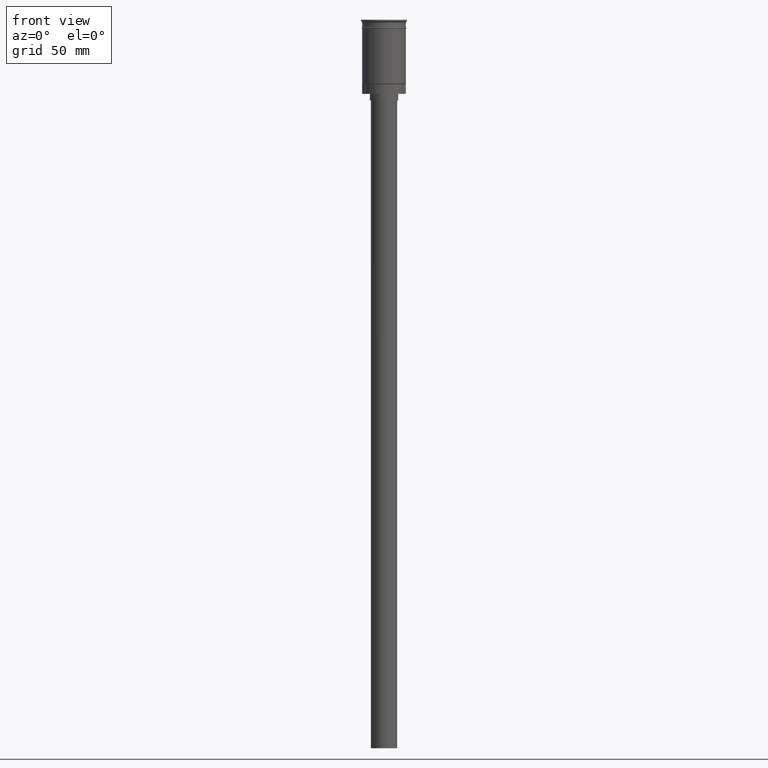
[diagram: clean part render]
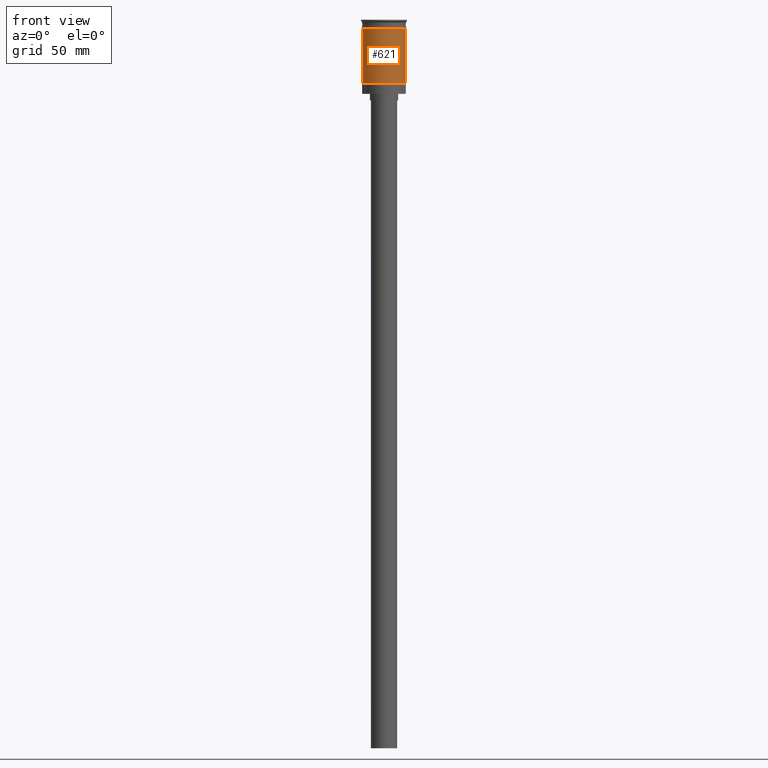
[diagram: same view with one face highlighted and labeled with its STEP entity id]
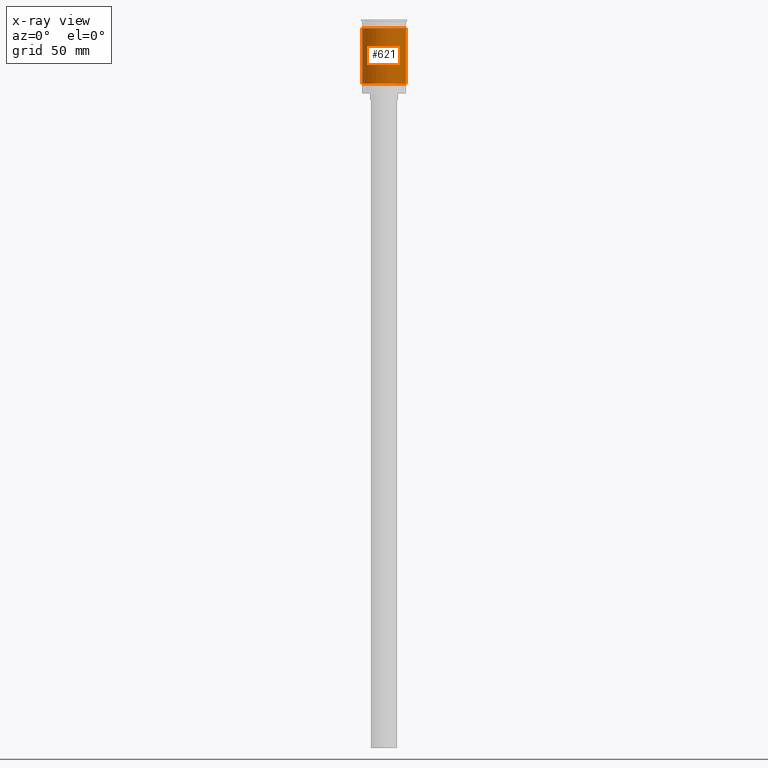
[diagram: x-ray of the same camera — body ghosted, the highlighted face saturated]
A machine part, front view. The second image highlights one B-rep face of the part: STEP entity #621.
The next image is the same camera in x-ray: the body ghosted, the highlighted face saturated — about 0% of this face is hidden behind the body in this view.
In plain terms, the highlighted cylindrical surface (edge-blend (fillet) strip) has radius 10 mm, axis along (-0, -0, 1).
Its self-contained STEP definition (entity closure, byte-faithful):
#11 = AXIS2_PLACEMENT_3D ( 'NONE', #608, #250, #513 ) ;
#21 = ORIENTED_EDGE ( 'NONE', *, *, #1056, .F. ) ;
#101 = DIRECTION ( 'NONE',  ( -0.000000000000000000, -0.000000000000000000, 1.000000000000000000 ) ) ;
#122 = VECTOR ( 'NONE', #1060, 1000.000000000000000 ) ;
#149 = VERTEX_POINT ( 'NONE', #219 ) ;
#219 = CARTESIAN_POINT ( 'NONE',  ( -10.00000000000000000, 1.224646799147353256E-15, -3.999999999999996447 ) ) ;
#238 = CARTESIAN_POINT ( 'NONE',  ( 9.999999999999994671, 0.000000000000000000, 0.000000000000000000 ) ) ;
#250 = DIRECTION ( 'NONE',  ( -0.000000000000000000, -0.000000000000000000, 1.000000000000000000 ) ) ;
#277 = CIRCLE ( 'NONE', #1286, 9.999999999999998224 ) ;
#287 = CARTESIAN_POINT ( 'NONE',  ( 0.000000000000000000, 0.000000000000000000, -3.999999999999996447 ) ) ;
#297 = ORIENTED_EDGE ( 'NONE', *, *, #711, .T. ) ;
#335 = LINE ( 'NONE', #238, #743 ) ;
#336 = EDGE_CURVE ( 'NONE', #907, #1429, #1571, .T. ) ;
#447 = DIRECTION ( 'NONE',  ( -0.000000000000000000, -0.000000000000000000, 1.000000000000000000 ) ) ;
#478 = CARTESIAN_POINT ( 'NONE',  ( -9.999999999999991118, 0.000000000000000000, -29.30000000000002913 ) ) ;
#512 = ORIENTED_EDGE ( 'NONE', *, *, #1281, .F. ) ;
#513 = DIRECTION ( 'NONE',  ( -1.000000000000000000, 0.000000000000000000, 0.000000000000000000 ) ) ;
#563 = CARTESIAN_POINT ( 'NONE',  ( -9.999999999999994671, 1.224646799147352665E-15, 0.000000000000000000 ) ) ;
#608 = CARTESIAN_POINT ( 'NONE',  ( 0.000000000000000000, 0.000000000000000000, -29.30000000000002913 ) ) ;
#621 = ADVANCED_FACE ( 'NONE', ( #1563 ), #1301, .T. ) ;
#662 = DIRECTION ( 'NONE',  ( 1.000000000000000000, 0.000000000000000000, 0.000000000000000000 ) ) ;
#707 = CARTESIAN_POINT ( 'NONE',  ( 9.999999999999998224, 0.000000000000000000, -3.999999999999996447 ) ) ;
#711 = EDGE_CURVE ( 'NONE', #1429, #755, #335, .T. ) ;
#743 = VECTOR ( 'NONE', #101, 1000.000000000000000 ) ;
#755 = VERTEX_POINT ( 'NONE', #707 ) ;
#812 = DIRECTION ( 'NONE',  ( -0.000000000000000000, -0.000000000000000000, 1.000000000000000000 ) ) ;
#907 = VERTEX_POINT ( 'NONE', #478 ) ;
#927 = LINE ( 'NONE', #563, #122 ) ;
#932 = CARTESIAN_POINT ( 'NONE',  ( 0.000000000000000000, 0.000000000000000000, 0.000000000000000000 ) ) ;
#941 = DIRECTION ( 'NONE',  ( 1.000000000000000000, 0.000000000000000000, 0.000000000000000000 ) ) ;
#996 = AXIS2_PLACEMENT_3D ( 'NONE', #932, #447, #941 ) ;
#1056 = EDGE_CURVE ( 'NONE', #907, #149, #927, .T. ) ;
#1060 = DIRECTION ( 'NONE',  ( -0.000000000000000000, -0.000000000000000000, 1.000000000000000000 ) ) ;
#1073 = ORIENTED_EDGE ( 'NONE', *, *, #336, .T. ) ;
#1191 = EDGE_LOOP ( 'NONE', ( #21, #1073, #297, #512 ) ) ;
#1212 = CARTESIAN_POINT ( 'NONE',  ( 9.999999999999994671, 1.224646799147352665E-15, -29.30000000000002913 ) ) ;
#1281 = EDGE_CURVE ( 'NONE', #149, #755, #277, .T. ) ;
#1286 = AXIS2_PLACEMENT_3D ( 'NONE', #287, #812, #662 ) ;
#1301 = CYLINDRICAL_SURFACE ( 'NONE', #996, 9.999999999999994671 ) ;
#1429 = VERTEX_POINT ( 'NONE', #1212 ) ;
#1563 = FACE_OUTER_BOUND ( 'NONE', #1191, .T. ) ;
#1571 = CIRCLE ( 'NONE', #11, 9.999999999999994671 ) ;